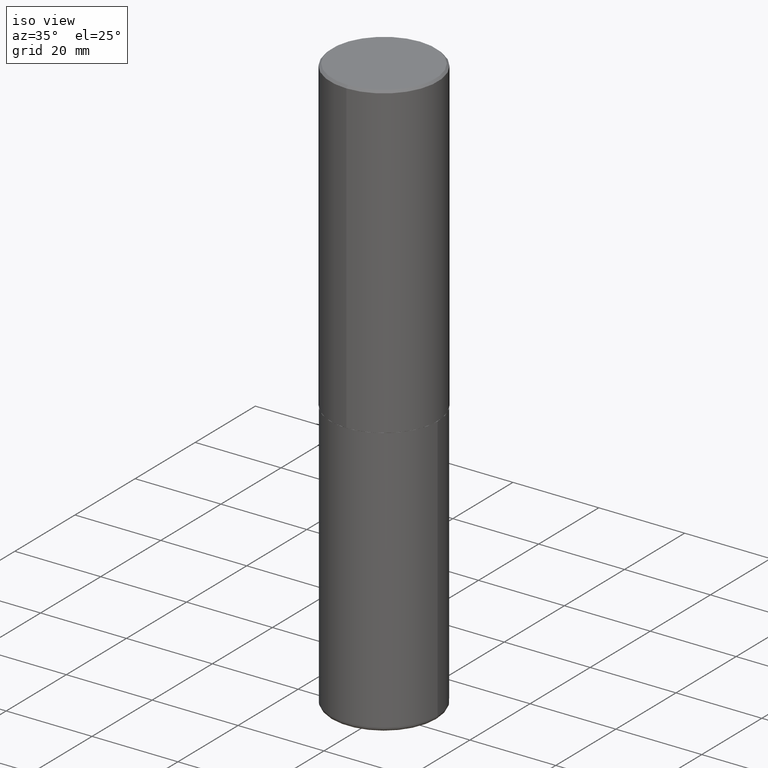
[diagram: clean part render]
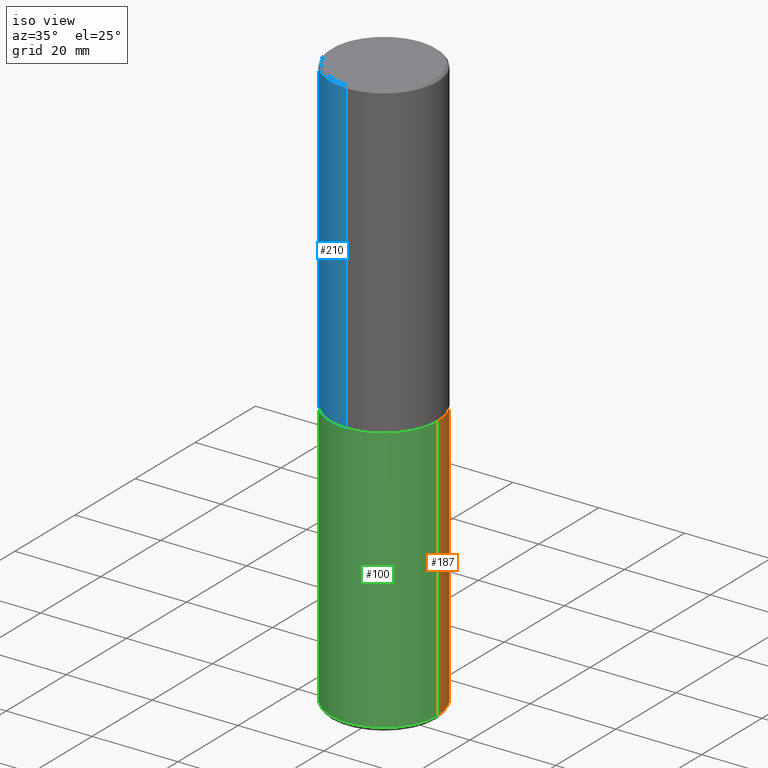
[diagram: same view with three faces highlighted in distinct colors, each labeled with its STEP entity id]
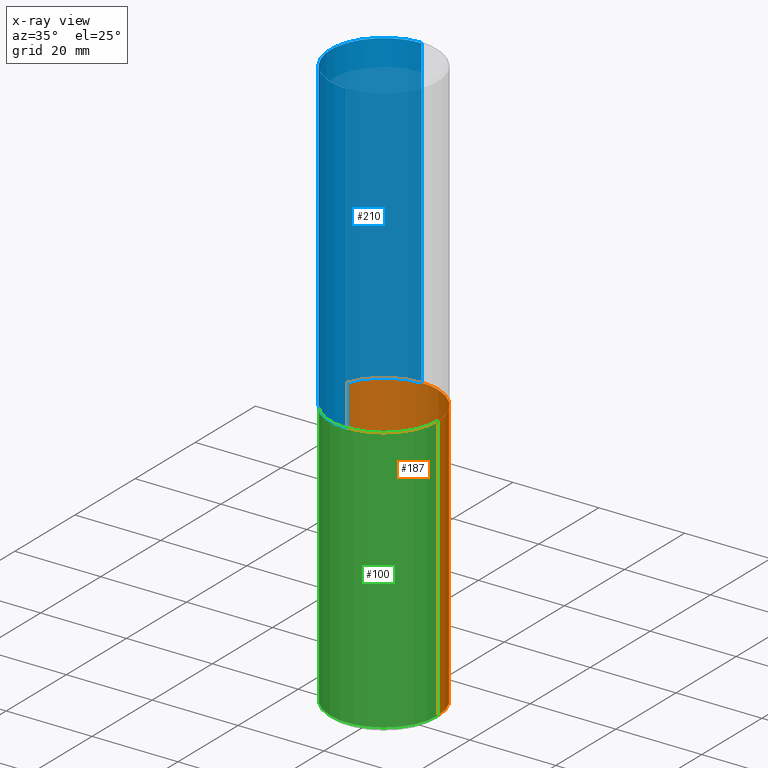
[diagram: x-ray of the same camera — body ghosted, the three highlighted faces saturated]
A machine part, iso view with three faces highlighted in distinct colors.
The next image is the same camera in x-ray (body ghosted, the three faces saturated) — at least one of them is partly hidden behind the body in this view.
Their STEP definitions:

[orange] entity #187 — the highlighted cylindrical surface (partial cylindrical patch) has radius 12.5006 mm, axis along (-0, 0, 1).
#1 = CARTESIAN_POINT ( 'NONE',  ( -0.4921500000000000874, -1.492272287715756368E-14, -5.275600000000000733 ) ) ;
#34 = LINE ( 'NONE', #160, #99 ) ;
#49 = CARTESIAN_POINT ( 'NONE',  ( -0.4921499999999999764, -1.066154447716645114E-14, -2.834700000000000220 ) ) ;
#53 = DIRECTION ( 'NONE',  ( -2.445468806185136597E-29, 3.491481338843145583E-15, 1.000000000000000000 ) ) ;
#81 = CARTESIAN_POINT ( 'NONE',  ( 0.4921500000000000874, -2.185632403302419787E-14, -5.275600000000000733 ) ) ;
#82 = VERTEX_POINT ( 'NONE', #1 ) ;
#85 = ORIENTED_EDGE ( 'NONE', *, *, #319, .T. ) ;
#86 = DIRECTION ( 'NONE',  ( -2.445468806185136597E-29, 3.491481338843145583E-15, 1.000000000000000000 ) ) ;
#90 = EDGE_CURVE ( 'NONE', #335, #82, #92, .T. ) ;
#92 = CIRCLE ( 'NONE', #330, 0.4921499999999999209 ) ;
#98 = DIRECTION ( 'NONE',  ( -2.445468806185136597E-29, 3.491481338843145583E-15, 1.000000000000000000 ) ) ;
#99 = VECTOR ( 'NONE', #414, 39.37007874015748143 ) ;
#112 = CARTESIAN_POINT ( 'NONE',  ( 6.932170424893007423E-29, -9.897302151218665974E-15, -2.834700000000000220 ) ) ;
#116 = DIRECTION ( 'NONE',  ( 1.000000000000000000, -6.982962677686265922E-15, 0.000000000000000000 ) ) ;
#123 = DIRECTION ( 'NONE',  ( 1.000000000000000000, -6.982962677686265922E-15, 4.876176775795935793E-29 ) ) ;
#124 = AXIS2_PLACEMENT_3D ( 'NONE', #112, #53, #116 ) ;
#140 = CARTESIAN_POINT ( 'NONE',  ( -0.4921499999999999764, 3.496936074043332897E-15, -2.420853904668951509E-29 ) ) ;
#148 = VERTEX_POINT ( 'NONE', #241 ) ;
#160 = CARTESIAN_POINT ( 'NONE',  ( 0.4921499999999999764, -3.436665081823295777E-15, 2.399810400207969603E-29 ) ) ;
#169 = VERTEX_POINT ( 'NONE', #49 ) ;
#173 = CIRCLE ( 'NONE', #124, 0.4921499999999999764 ) ;
#177 = ORIENTED_EDGE ( 'NONE', *, *, #183, .F. ) ;
#183 = EDGE_CURVE ( 'NONE', #148, #169, #173, .T. ) ;
#187 = ADVANCED_FACE ( 'NONE', ( #256 ), #373, .T. ) ;
#205 = VECTOR ( 'NONE', #280, 39.37007874015748143 ) ;
#215 = ORIENTED_EDGE ( 'NONE', *, *, #261, .F. ) ;
#241 = CARTESIAN_POINT ( 'NONE',  ( 0.4921499999999999764, -1.333396723304196175E-14, -2.834700000000000220 ) ) ;
#254 = ORIENTED_EDGE ( 'NONE', *, *, #90, .T. ) ;
#256 = FACE_OUTER_BOUND ( 'NONE', #339, .T. ) ;
#259 = CARTESIAN_POINT ( 'NONE',  ( 0.000000000000000000, 0.000000000000000000, 0.000000000000000000 ) ) ;
#261 = EDGE_CURVE ( 'NONE', #335, #148, #34, .T. ) ;
#264 = AXIS2_PLACEMENT_3D ( 'NONE', #259, #86, #123 ) ;
#280 = DIRECTION ( 'NONE',  ( -2.445468806185136877E-29, 3.491481338843145188E-15, 1.000000000000000000 ) ) ;
#310 = LINE ( 'NONE', #140, #205 ) ;
#319 = EDGE_CURVE ( 'NONE', #82, #169, #310, .T. ) ;
#330 = AXIS2_PLACEMENT_3D ( 'NONE', #349, #98, #354 ) ;
#335 = VERTEX_POINT ( 'NONE', #81 ) ;
#339 = EDGE_LOOP ( 'NONE', ( #254, #85, #177, #215 ) ) ;
#349 = CARTESIAN_POINT ( 'NONE',  ( 1.290131523391030870E-28, -1.841965895120090052E-14, -5.275600000000000733 ) ) ;
#354 = DIRECTION ( 'NONE',  ( 1.000000000000000000, -6.982962677686266711E-15, 0.000000000000000000 ) ) ;
#373 = CYLINDRICAL_SURFACE ( 'NONE', #264, 0.4921499999999999764 ) ;
#414 = DIRECTION ( 'NONE',  ( -2.445468806185136877E-29, 3.491481338843145188E-15, 1.000000000000000000 ) ) ;

[blue] entity #210 — the highlighted cylindrical surface (partial cylindrical patch) has radius 12.5006 mm, axis along (-0, 0, 1).
#7 = CIRCLE ( 'NONE', #398, 0.4921500000000003094 ) ;
#12 = DIRECTION ( 'NONE',  ( -2.445229172240879899E-29, 3.491824508290438219E-15, 1.000000000000000000 ) ) ;
#18 = VERTEX_POINT ( 'NONE', #94 ) ;
#46 = CARTESIAN_POINT ( 'NONE',  ( -3.436665081823297354E-15, -0.4921500000000001984, 1.718501431755139742E-15 ) ) ;
#64 = CARTESIAN_POINT ( 'NONE',  ( -3.436665081823228329E-15, -0.4921500000000101904, -2.833699999999998997 ) ) ;
#74 = VERTEX_POINT ( 'NONE', #64 ) ;
#75 = DIRECTION ( 'NONE',  ( -6.982962677686265922E-15, -1.000000000000000000, 3.330506545156063891E-15 ) ) ;
#94 = CARTESIAN_POINT ( 'NONE',  ( 3.436665081823296565E-15, 0.4921499999999999764, -0.02000000000000182535 ) ) ;
#101 = CARTESIAN_POINT ( 'NONE',  ( 6.929045905378983914E-29, -9.894783109142616722E-15, -2.833700000000000330 ) ) ;
#105 = EDGE_LOOP ( 'NONE', ( #284, #110, #400, #371 ) ) ;
#107 = EDGE_CURVE ( 'NONE', #18, #251, #150, .T. ) ;
#110 = ORIENTED_EDGE ( 'NONE', *, *, #404, .T. ) ;
#121 = EDGE_CURVE ( 'NONE', #74, #251, #302, .T. ) ;
#146 = EDGE_CURVE ( 'NONE', #244, #18, #271, .T. ) ;
#150 = CIRCLE ( 'NONE', #202, 0.4921500000000000319 ) ;
#155 = FACE_OUTER_BOUND ( 'NONE', #105, .T. ) ;
#164 = DIRECTION ( 'NONE',  ( -2.445229172240879899E-29, 3.491824508290438613E-15, 1.000000000000000000 ) ) ;
#166 = DIRECTION ( 'NONE',  ( -6.982962677686265922E-15, -1.000000000000000000, 3.495297233588267070E-15 ) ) ;
#190 = CARTESIAN_POINT ( 'NONE',  ( 0.000000000000000000, 0.000000000000000000, 0.000000000000000000 ) ) ;
#192 = CARTESIAN_POINT ( 'NONE',  ( -3.376394089603258656E-15, -0.4921500000000000874, -0.01999999999999838712 ) ) ;
#202 = AXIS2_PLACEMENT_3D ( 'NONE', #204, #297, #166 ) ;
#204 = CARTESIAN_POINT ( 'NONE',  ( 4.890458344481786073E-31, -6.983649016580912824E-17, -0.02000000000000010797 ) ) ;
#210 = ADVANCED_FACE ( 'NONE', ( #155 ), #344, .T. ) ;
#240 = VECTOR ( 'NONE', #164, 39.37007874015748143 ) ;
#244 = VERTEX_POINT ( 'NONE', #412 ) ;
#251 = VERTEX_POINT ( 'NONE', #192 ) ;
#270 = DIRECTION ( 'NONE',  ( -2.445229172240879899E-29, 3.491824508290438613E-15, 1.000000000000000000 ) ) ;
#271 = LINE ( 'NONE', #331, #240 ) ;
#284 = ORIENTED_EDGE ( 'NONE', *, *, #146, .F. ) ;
#288 = AXIS2_PLACEMENT_3D ( 'NONE', #190, #351, #417 ) ;
#297 = DIRECTION ( 'NONE',  ( -2.445229172240879899E-29, 3.491824508290438219E-15, 1.000000000000000000 ) ) ;
#302 = LINE ( 'NONE', #46, #323 ) ;
#323 = VECTOR ( 'NONE', #270, 39.37007874015748143 ) ;
#331 = CARTESIAN_POINT ( 'NONE',  ( 3.496936074043333686E-15, 0.4921500000000001984, -1.718501431755139742E-15 ) ) ;
#344 = CYLINDRICAL_SURFACE ( 'NONE', #288, 0.4921500000000001984 ) ;
#351 = DIRECTION ( 'NONE',  ( -2.445229172240879899E-29, 3.491824508290438219E-15, 1.000000000000000000 ) ) ;
#371 = ORIENTED_EDGE ( 'NONE', *, *, #107, .F. ) ;
#398 = AXIS2_PLACEMENT_3D ( 'NONE', #101, #12, #75 ) ;
#400 = ORIENTED_EDGE ( 'NONE', *, *, #121, .T. ) ;
#404 = EDGE_CURVE ( 'NONE', #244, #74, #7, .T. ) ;
#412 = CARTESIAN_POINT ( 'NONE',  ( 3.496936074043369579E-15, 0.4921499999999904840, -2.833700000000002106 ) ) ;
#417 = DIRECTION ( 'NONE',  ( -6.982962677686266711E-15, -1.000000000000000000, 3.491824508290437824E-15 ) ) ;

[green] entity #100 — the highlighted cylindrical surface (partial cylindrical patch) has radius 12.5006 mm, axis along (-0, 0, 1).
#1 = CARTESIAN_POINT ( 'NONE',  ( -0.4921500000000000874, -1.492272287715756368E-14, -5.275600000000000733 ) ) ;
#19 = AXIS2_PLACEMENT_3D ( 'NONE', #117, #91, #413 ) ;
#34 = LINE ( 'NONE', #160, #99 ) ;
#38 = CIRCLE ( 'NONE', #346, 0.4921499999999999209 ) ;
#49 = CARTESIAN_POINT ( 'NONE',  ( -0.4921499999999999764, -1.066154447716645114E-14, -2.834700000000000220 ) ) ;
#77 = DIRECTION ( 'NONE',  ( 1.000000000000000000, -6.982962677686265922E-15, 4.876176775795935793E-29 ) ) ;
#81 = CARTESIAN_POINT ( 'NONE',  ( 0.4921500000000000874, -2.185632403302419787E-14, -5.275600000000000733 ) ) ;
#82 = VERTEX_POINT ( 'NONE', #1 ) ;
#91 = DIRECTION ( 'NONE',  ( -2.445468806185136597E-29, 3.491481338843145583E-15, 1.000000000000000000 ) ) ;
#99 = VECTOR ( 'NONE', #414, 39.37007874015748143 ) ;
#100 = ADVANCED_FACE ( 'NONE', ( #200 ), #326, .T. ) ;
#117 = CARTESIAN_POINT ( 'NONE',  ( 6.932170424893007423E-29, -9.897302151218665974E-15, -2.834700000000000220 ) ) ;
#140 = CARTESIAN_POINT ( 'NONE',  ( -0.4921499999999999764, 3.496936074043332897E-15, -2.420853904668951509E-29 ) ) ;
#144 = CIRCLE ( 'NONE', #19, 0.4921499999999999764 ) ;
#148 = VERTEX_POINT ( 'NONE', #241 ) ;
#160 = CARTESIAN_POINT ( 'NONE',  ( 0.4921499999999999764, -3.436665081823295777E-15, 2.399810400207969603E-29 ) ) ;
#169 = VERTEX_POINT ( 'NONE', #49 ) ;
#200 = FACE_OUTER_BOUND ( 'NONE', #327, .T. ) ;
#205 = VECTOR ( 'NONE', #280, 39.37007874015748143 ) ;
#209 = CARTESIAN_POINT ( 'NONE',  ( 0.000000000000000000, 0.000000000000000000, 0.000000000000000000 ) ) ;
#218 = ORIENTED_EDGE ( 'NONE', *, *, #324, .T. ) ;
#233 = AXIS2_PLACEMENT_3D ( 'NONE', #209, #334, #77 ) ;
#241 = CARTESIAN_POINT ( 'NONE',  ( 0.4921499999999999764, -1.333396723304196175E-14, -2.834700000000000220 ) ) ;
#247 = ORIENTED_EDGE ( 'NONE', *, *, #319, .F. ) ;
#253 = DIRECTION ( 'NONE',  ( -2.445468806185136597E-29, 3.491481338843145583E-15, 1.000000000000000000 ) ) ;
#261 = EDGE_CURVE ( 'NONE', #335, #148, #34, .T. ) ;
#280 = DIRECTION ( 'NONE',  ( -2.445468806185136877E-29, 3.491481338843145188E-15, 1.000000000000000000 ) ) ;
#303 = ORIENTED_EDGE ( 'NONE', *, *, #321, .F. ) ;
#310 = LINE ( 'NONE', #140, #205 ) ;
#319 = EDGE_CURVE ( 'NONE', #82, #169, #310, .T. ) ;
#321 = EDGE_CURVE ( 'NONE', #169, #148, #144, .T. ) ;
#324 = EDGE_CURVE ( 'NONE', #82, #335, #38, .T. ) ;
#326 = CYLINDRICAL_SURFACE ( 'NONE', #233, 0.4921499999999999764 ) ;
#327 = EDGE_LOOP ( 'NONE', ( #247, #218, #418, #303 ) ) ;
#334 = DIRECTION ( 'NONE',  ( -2.445468806185136597E-29, 3.491481338843145583E-15, 1.000000000000000000 ) ) ;
#335 = VERTEX_POINT ( 'NONE', #81 ) ;
#346 = AXIS2_PLACEMENT_3D ( 'NONE', #377, #253, #348 ) ;
#348 = DIRECTION ( 'NONE',  ( 1.000000000000000000, -6.982962677686266711E-15, 0.000000000000000000 ) ) ;
#377 = CARTESIAN_POINT ( 'NONE',  ( 1.290131523391030870E-28, -1.841965895120090052E-14, -5.275600000000000733 ) ) ;
#413 = DIRECTION ( 'NONE',  ( 1.000000000000000000, -6.982962677686265922E-15, 0.000000000000000000 ) ) ;
#414 = DIRECTION ( 'NONE',  ( -2.445468806185136877E-29, 3.491481338843145188E-15, 1.000000000000000000 ) ) ;
#418 = ORIENTED_EDGE ( 'NONE', *, *, #261, .T. ) ;